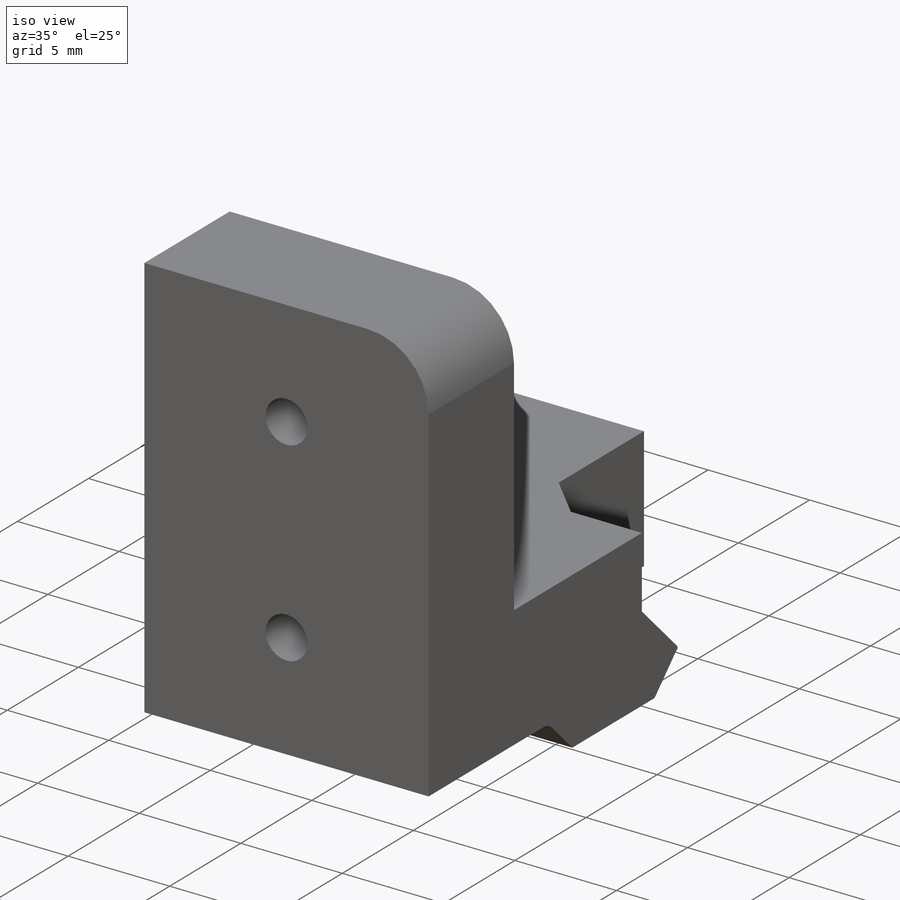
[diagram: iso view]
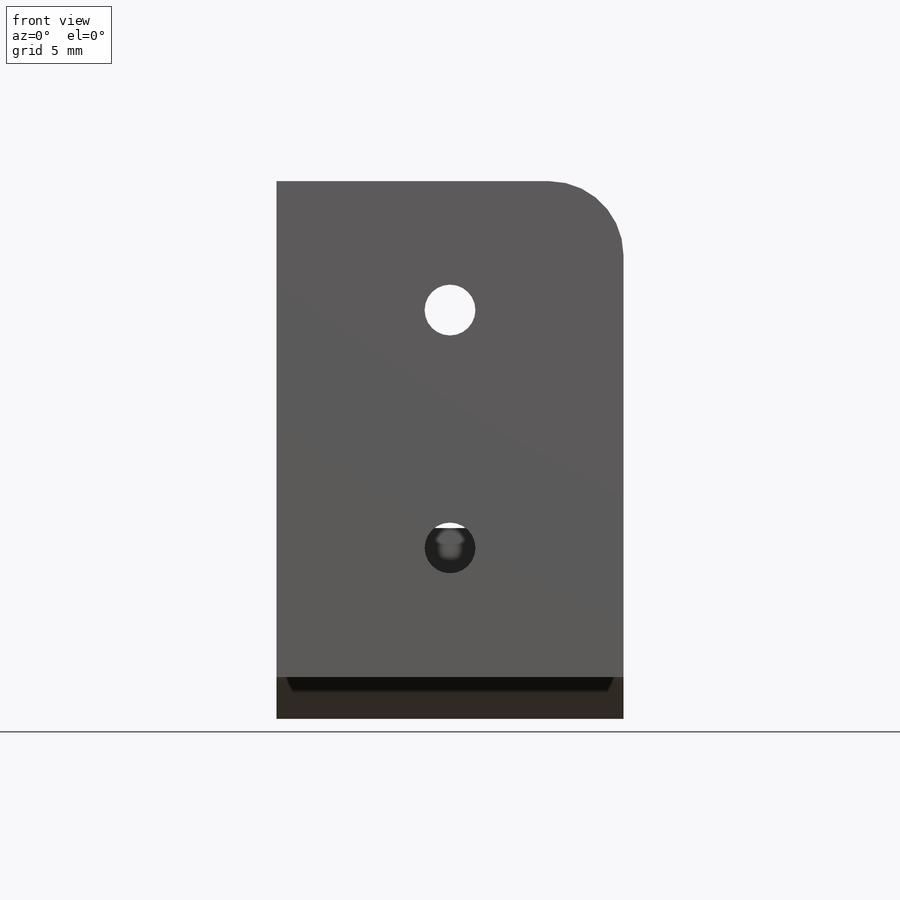
[diagram: front view]
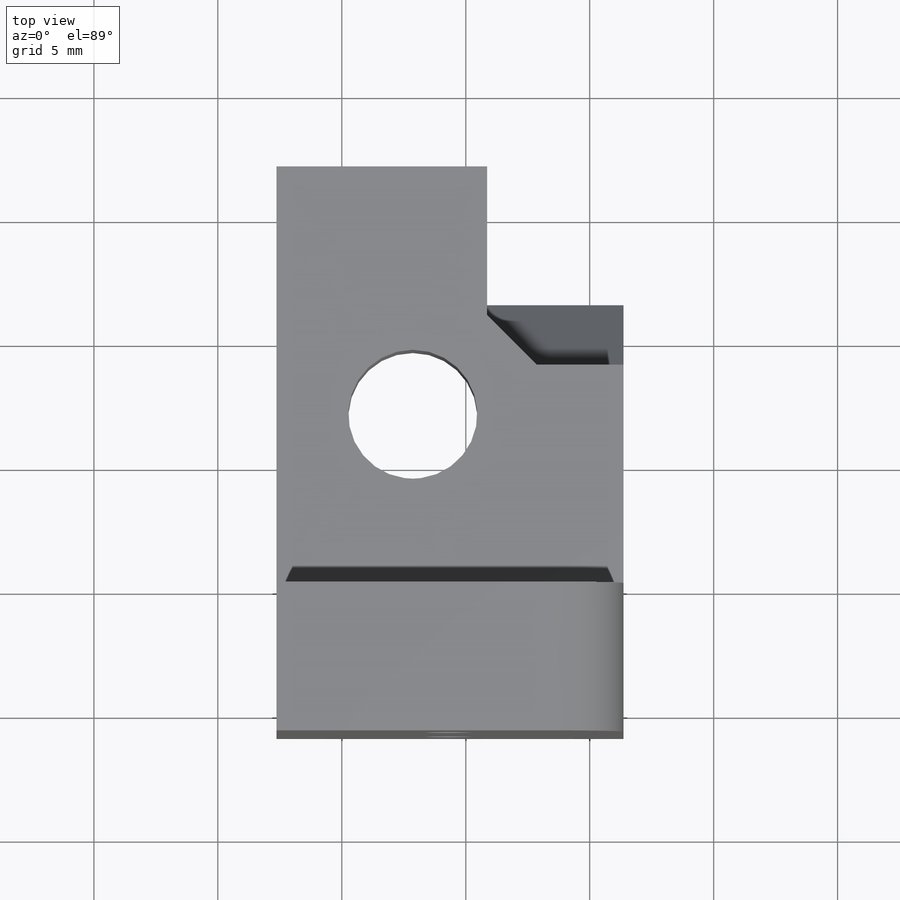
[diagram: top view]
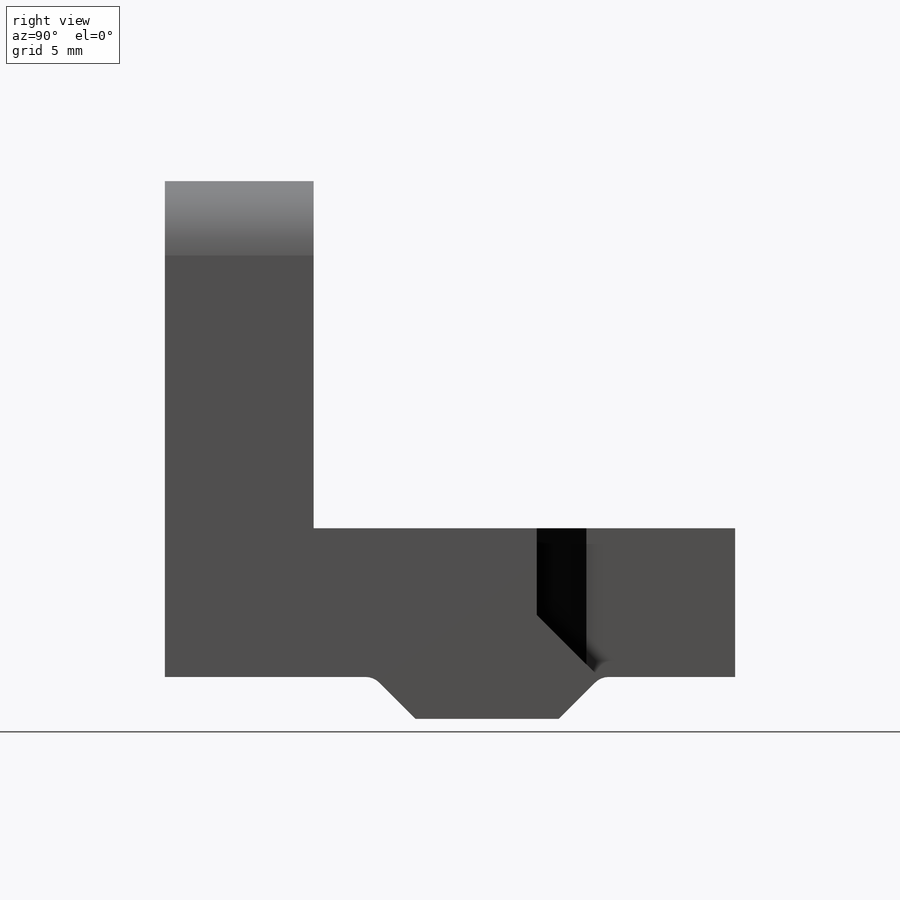
[diagram: right view]
SOLIDWORKS PART (.sldprt)
format: sldprt  version: not decoded by parser v0  size: 326,656 bytes
history: native  units: mm
features: sketch x6, cut_extrude x4, extrude x2, chamfer x2, material x1, fillet x1 (+12 scaffold rows collapsed)
feature tree (28):
  scaffold x12  (default folders/planes/origin — collapsed)
  material  "Material <not specified>"
  sketch  "Sketch1"  dims[c1.D2=~2.373018mm c1.D3=20.0mm c2.D2=6.0mm c2.D3=5.78mm c2.D1=0.0mm]
  extrude  "Boss-Extrude1"  Depth=14mm
  sketch  "Sketch2"  dims[D1=~9.115659mm D2=5.5mm]
  cut_extrude  "Cut-Extrude1"  [1 undecoded]
  sketch  "Sketch3"  dims[c1.D1=~7.559624mm c1.D2=~12.622916mm c2.D1=20.0mm]
  extrude  "Boss-Extrude2"  Depth=3mm
  sketch  "Sketch4"  dims[c1.D1=~3.874747mm c1.D5=2.05mm c1.D6=2.05mm c2.D1=7.0mm c2.D2=7.0mm c2.D3=9.6mm c2.D4=5.2mm]
  cut_extrude  "Cut-Extrude4"  Depth=6mm
  sketch  "Sketch5"  dims[c1.D1=~6.282665mm c1.D2=~5.693499mm c2.D1=5.5mm c2.D2=8.0mm]
  cut_extrude  "Cut-Extrude5"  [1 undecoded]
  chamfer  "Chamfer1"  Distance=2mm Angle=45deg
  chamfer  "Chamfer2"  Distance=2.5mm Angle=45deg
  sketch  "Sketch6"  dims[D1=0.0mm]
  cut_extrude  "Cut-Extrude6"  [1 undecoded]
  fillet  "Fillet1"  Radius=3mm
decode coverage: 12 of 15 modeling features carry decoded parameters
note: ~ marks probable driven/reference dimensions
note: 3 parameter values undecoded
summary: no parameter record found for 3 features
note: suppression state not decoded; provenance and decode notes live in map.json
